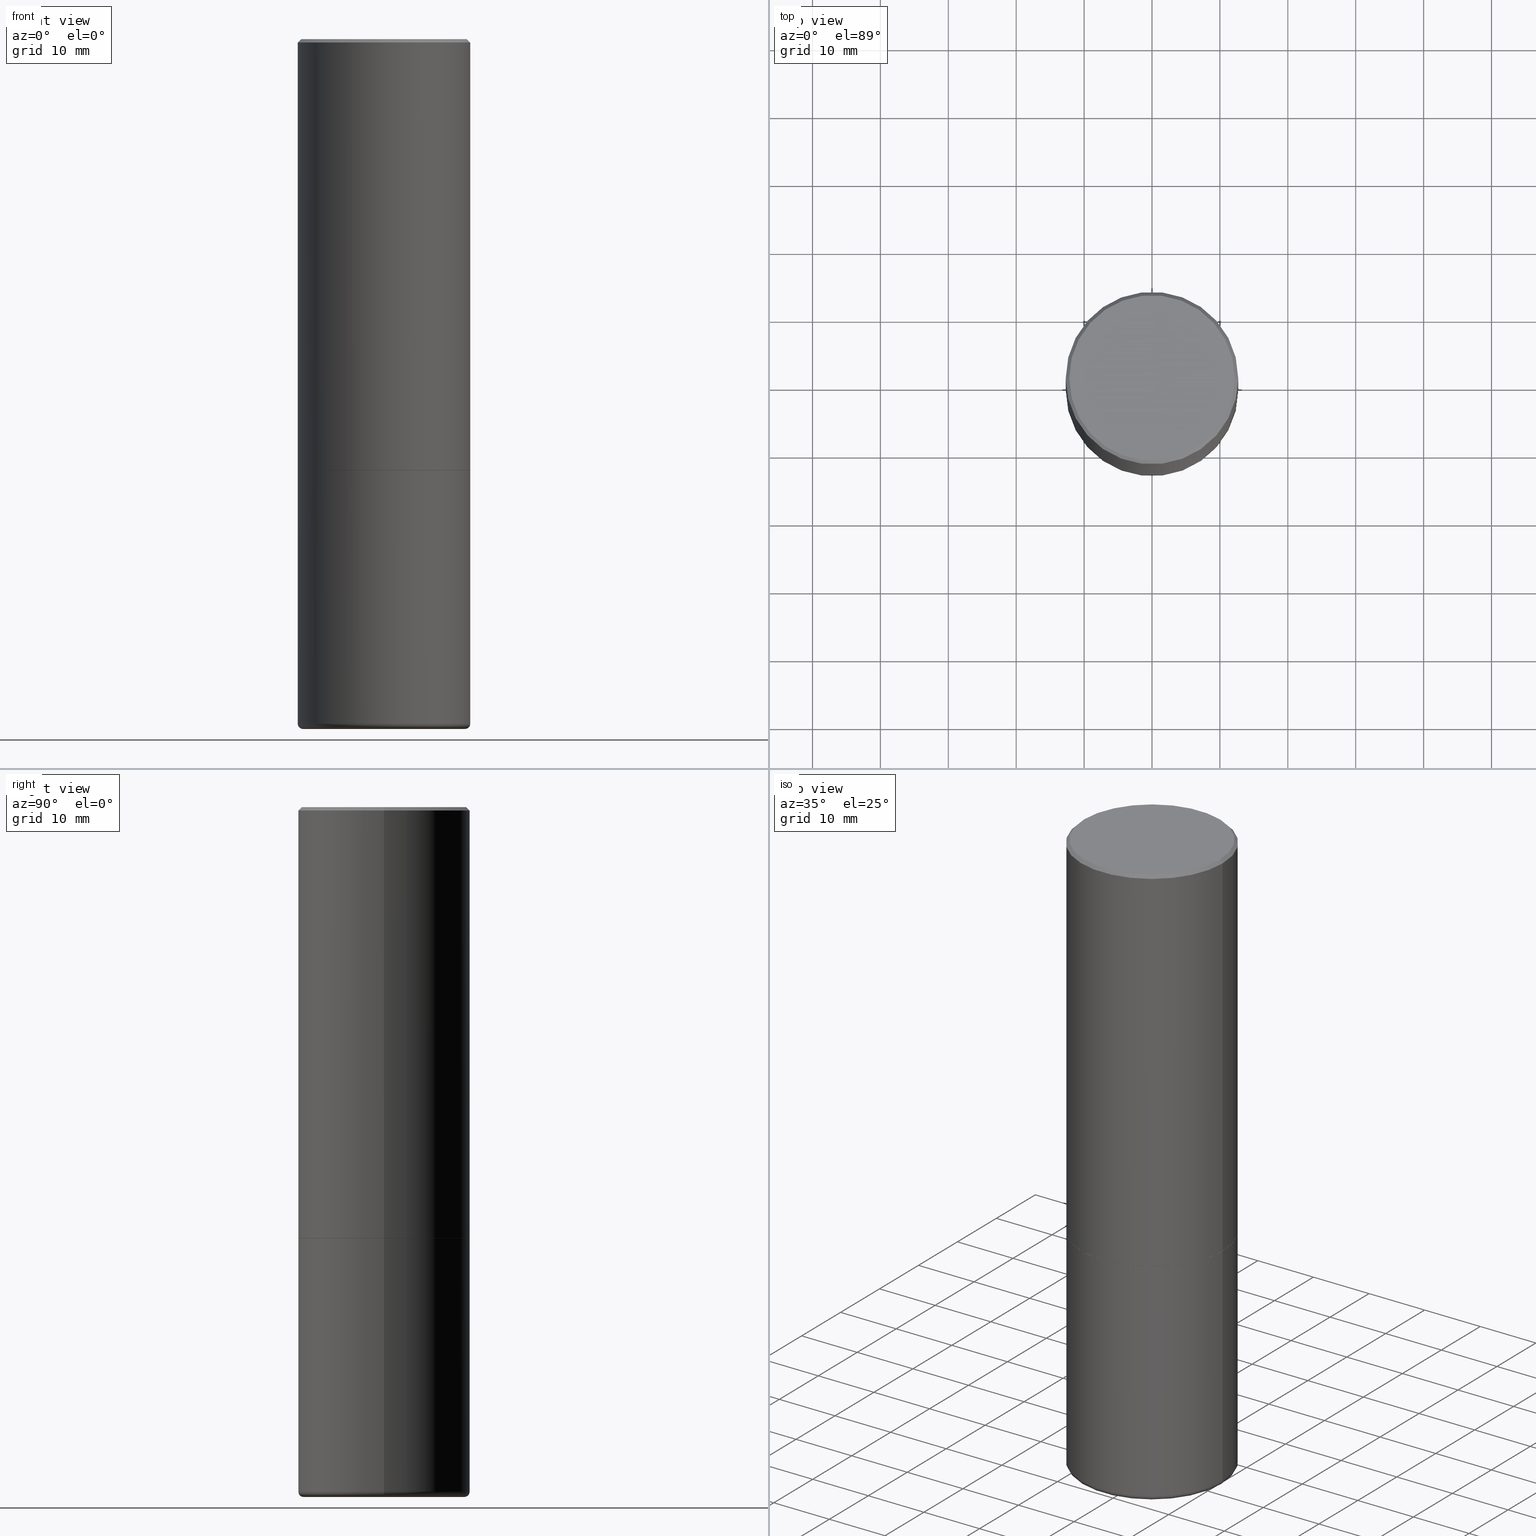
[diagram: canonical four-view strip — front | top / right | iso, engineering-drawing reading convention]
A machine part, canonical four-view strip (front | top / right | iso — engineering-drawing reading convention). The complete STEP part file that produces these views, byte-faithful:
ISO-10303-21;
HEADER;
FILE_DESCRIPTION (( 'STEP AP203' ),
    '1' );
FILE_NAME ('37138.STEP',
    '2024-03-01T20:50:48',
    ( '' ),
    ( '' ),
    'SwSTEP 2.0',
    'SolidWorks 2023',
    '' );
FILE_SCHEMA (( 'CONFIG_CONTROL_DESIGN' ));
ENDSEC;

DATA;
#1 = FACE_OUTER_BOUND ( 'NONE', #52, .T. ) ;
#2 = EDGE_CURVE ( 'NONE', #367, #404, #260, .T. ) ;
#3 = VERTEX_POINT ( 'NONE', #388 ) ;
#4 = DIRECTION ( 'NONE',  ( 1.000000000000000000, -6.982962677686266711E-15, 4.876176775795935793E-29 ) ) ;
#5 = ORIENTED_EDGE ( 'NONE', *, *, #308, .F. ) ;
#6 = CIRCLE ( 'NONE', #170, 0.5000000000000000000 ) ;
#7 = DIRECTION ( 'NONE',  ( 1.000000000000000000, -6.982962677686266711E-15, 0.000000000000000000 ) ) ;
#8 = AXIS2_PLACEMENT_3D ( 'NONE', #361, #225, #389 ) ;
#9 = EDGE_LOOP ( 'NONE', ( #262, #374, #134, #17 ) ) ;
#10 = ADVANCED_BREP_SHAPE_REPRESENTATION ( '37138', ( #21, #306, #273 ), #179 ) ;
#11 = FACE_OUTER_BOUND ( 'NONE', #314, .T. ) ;
#12 = CARTESIAN_POINT ( 'NONE',  ( 4.890937612370299433E-31, -6.982962677686328587E-17, -0.02000000000000010797 ) ) ;
#13 = SECURITY_CLASSIFICATION ( '', '', #221 ) ;
#14 = AXIS2_PLACEMENT_3D ( 'NONE', #257, #294, #355 ) ;
#15 = PRODUCT_DEFINITION ( 'UNKNOWN', '', #204, #48 ) ;
#16 = CALENDAR_DATE ( 2024, 1, 3 ) ;
#17 = ORIENTED_EDGE ( 'NONE', *, *, #122, .F. ) ;
#18 = EDGE_CURVE ( 'NONE', #175, #34, #206, .T. ) ;
#19 = APPLICATION_CONTEXT ( 'configuration controlled 3d designs of mechanical parts and assemblies' ) ;
#20 = ORIENTED_EDGE ( 'NONE', *, *, #304, .T. ) ;
#21 = MANIFOLD_SOLID_BREP ( 'Body-Move/Copy2[1]', #342 ) ;
#22 = DIRECTION ( 'NONE',  ( 1.000000000000000000, -6.982962677686265922E-15, 4.876176775795935793E-29 ) ) ;
#23 = ORIENTED_EDGE ( 'NONE', *, *, #73, .F. ) ;
#24 = TOROIDAL_SURFACE ( 'NONE', #91, 0.4700000000000000289, 0.02999999999999995379 ) ;
#25 =( LENGTH_UNIT ( ) NAMED_UNIT ( * ) SI_UNIT ( $, .METRE. ) );
#26 = EDGE_LOOP ( 'NONE', ( #344, #46, #5, #118 ) ) ;
#27 = LINE ( 'NONE', #127, #76 ) ;
#28 = LINE ( 'NONE', #289, #84 ) ;
#29 = VECTOR ( 'NONE', #65, 39.37007874015748143 ) ;
#30 = LINE ( 'NONE', #218, #238 ) ;
#31 = ADVANCED_FACE ( 'NONE', ( #158 ), #286, .T. ) ;
#32 = DATE_AND_TIME ( #97, #121 ) ;
#33 = CARTESIAN_POINT ( 'NONE',  ( 0.5000000000000000000, -1.735266225405042074E-14, -3.970000000000000195 ) ) ;
#34 = VERTEX_POINT ( 'NONE', #123 ) ;
#35 = DIRECTION ( 'NONE',  ( -2.445468806185136597E-29, 3.491481338843145583E-15, 1.000000000000000000 ) ) ;
#36 = AXIS2_PLACEMENT_3D ( 'NONE', #51, #145, #313 ) ;
#37 = CARTESIAN_POINT ( 'NONE',  ( -0.4799999999999998157, 3.386736898677839197E-15, 2.561107494060010972E-16 ) ) ;
#38 = EDGE_CURVE ( 'NONE', #396, #319, #27, .T. ) ;
#39 = FACE_OUTER_BOUND ( 'NONE', #9, .T. ) ;
#40 = DIRECTION ( 'NONE',  ( -2.445468806185136597E-29, 3.491481338843145583E-15, 1.000000000000000000 ) ) ;
#41 = ORIENTED_EDGE ( 'NONE', *, *, #274, .T. ) ;
#42 = CARTESIAN_POINT ( 'NONE',  ( 6.113672015462842613E-29, -8.728703347107864943E-15, -2.500000000000000000 ) ) ;
#43 = CARTESIAN_POINT ( 'NONE',  ( 0.000000000000000000, 0.000000000000000000, 0.000000000000000000 ) ) ;
#44 = APPROVAL_STATUS ( 'not_yet_approved' ) ;
#45 = CONICAL_SURFACE ( 'NONE', #266, 0.5000000000000001110, 0.7853981633974458365 ) ;
#46 = ORIENTED_EDGE ( 'NONE', *, *, #18, .T. ) ;
#47 = ADVANCED_FACE ( 'NONE', ( #409 ), #96, .F. ) ;
#48 = DESIGN_CONTEXT ( 'detailed design', #19, 'design' ) ;
#49 = AXIS2_PLACEMENT_3D ( 'NONE', #220, #326, #382 ) ;
#50 = ORIENTED_EDGE ( 'NONE', *, *, #256, .T. ) ;
#51 = CARTESIAN_POINT ( 'NONE',  ( 0.000000000000000000, 0.000000000000000000, 0.000000000000000000 ) ) ;
#52 = EDGE_LOOP ( 'NONE', ( #276, #349, #71, #375 ) ) ;
#53 = CARTESIAN_POINT ( 'NONE',  ( -0.5000000000000000000, -7.742228452357075234E-15, -2.500000000000000000 ) ) ;
#54 = ORIENTED_EDGE ( 'NONE', *, *, #336, .F. ) ;
#55 = TOROIDAL_SURFACE ( 'NONE', #103, 0.4700000000000000289, 0.02999999999999995379 ) ;
#56 = CIRCLE ( 'NONE', #14, 0.5000000000000000000 ) ;
#57 = PERSON_AND_ORGANIZATION_ROLE ( 'classification_officer' ) ;
#58 = ORIENTED_EDGE ( 'NONE', *, *, #223, .F. ) ;
#59 = PERSON_AND_ORGANIZATION ( #236, #301 ) ;
#60 = DIRECTION ( 'NONE',  ( -1.000000000000000000, 6.982962677686265922E-15, -4.876176775795935793E-29 ) ) ;
#61 = FACE_OUTER_BOUND ( 'NONE', #83, .T. ) ;
#62 = EDGE_CURVE ( 'NONE', #224, #341, #63, .T. ) ;
#63 = CIRCLE ( 'NONE', #119, 0.4799999999999998157 ) ;
#64 = CARTESIAN_POINT ( 'NONE',  ( 0.5000000000000000000, -1.222018468595099830E-14, -2.500000000000000000 ) ) ;
#65 = DIRECTION ( 'NONE',  ( 0.7071067811865457964, -7.319954787623249734E-15, -0.7071067811865492381 ) ) ;
#66 = DIRECTION ( 'NONE',  ( -1.000000000000000000, 6.982962677686265922E-15, 0.000000000000000000 ) ) ;
#67 = LOCAL_TIME ( 15, 50, 48.00000000000000000, #156 ) ;
#68 = CLOSED_SHELL ( 'NONE', ( #414, #176, #354, #31, #366, #195, #381, #241 ) ) ;
#69 = DIRECTION ( 'NONE',  ( 1.000000000000000000, -6.982962677686269077E-15, 0.000000000000000000 ) ) ;
#70 = PLANE ( 'NONE',  #110 ) ;
#71 = ORIENTED_EDGE ( 'NONE', *, *, #38, .T. ) ;
#72 = CARTESIAN_POINT ( 'NONE',  ( 0.4700000000000000289, -1.724791781388512737E-14, -4.000000000000000000 ) ) ;
#73 = EDGE_CURVE ( 'NONE', #34, #140, #417, .T. ) ;
#74 = VECTOR ( 'NONE', #373, 39.37007874015748143 ) ;
#75 = DIRECTION ( 'NONE',  ( -2.445468806185136597E-29, 3.491481338843145583E-15, 1.000000000000000000 ) ) ;
#76 = VECTOR ( 'NONE', #99, 39.37007874015748143 ) ;
#77 = APPLICATION_PROTOCOL_DEFINITION ( 'international standard', 'config_control_design', 1994, #360 ) ;
#78 = ADVANCED_FACE ( 'NONE', ( #411 ), #24, .T. ) ;
#79 = DIRECTION ( 'NONE',  ( 1.000000000000000000, 0.000000000000000000, 0.000000000000000000 ) ) ;
#80 = ORIENTED_EDGE ( 'NONE', *, *, #2, .F. ) ;
#81 = LOCAL_TIME ( 15, 50, 48.00000000000000000, #124 ) ;
#82 = CYLINDRICAL_SURFACE ( 'NONE', #36, 0.5000000000000001110 ) ;
#83 = EDGE_LOOP ( 'NONE', ( #142, #379, #54, #107 ) ) ;
#84 = VECTOR ( 'NONE', #253, 39.37007874015748143 ) ;
#85 = PERSON_AND_ORGANIZATION_ROLE ( 'design_owner' ) ;
#86 = ORIENTED_EDGE ( 'NONE', *, *, #163, .T. ) ;
#87 = FACE_OUTER_BOUND ( 'NONE', #247, .T. ) ;
#88 = EDGE_LOOP ( 'NONE', ( #210, #117, #114, #41 ) ) ;
#89 = VERTEX_POINT ( 'NONE', #64 ) ;
#90 = APPROVAL_PERSON_ORGANIZATION ( #293, #254, #284 ) ;
#91 = AXIS2_PLACEMENT_3D ( 'NONE', #120, #35, #149 ) ;
#92 = DIRECTION ( 'NONE',  ( -2.445468806185136877E-29, 3.491481338843145188E-15, 1.000000000000000000 ) ) ;
#93 = PRODUCT_DEFINITION_SHAPE ( 'NONE', 'NONE',  #15 ) ;
#94 = CALENDAR_DATE ( 2024, 1, 3 ) ;
#95 = EDGE_CURVE ( 'NONE', #140, #89, #285, .T. ) ;
#96 = PLANE ( 'NONE',  #245 ) ;
#97 = CALENDAR_DATE ( 2024, 1, 3 ) ;
#98 = DIRECTION ( 'NONE',  ( -2.445468806185136597E-29, 3.491481338843145583E-15, 1.000000000000000000 ) ) ;
#99 = DIRECTION ( 'NONE',  ( -2.445468806185136877E-29, 3.491481338843145188E-15, 1.000000000000000000 ) ) ;
#100 = CC_DESIGN_DATE_AND_TIME_ASSIGNMENT ( #126, #217, ( #15 ) ) ;
#101 = CARTESIAN_POINT ( 'NONE',  ( 6.113672015462842613E-29, -8.728703347107864943E-15, -2.500000000000000000 ) ) ;
#102 = CARTESIAN_POINT ( 'NONE',  ( -0.5000000000000001110, 3.421651712066270452E-15, -0.02000000000000010797 ) ) ;
#103 = AXIS2_PLACEMENT_3D ( 'NONE', #239, #40, #371 ) ;
#104 = FACE_OUTER_BOUND ( 'NONE', #197, .T. ) ;
#105 = DIRECTION ( 'NONE',  ( 1.000000000000000000, -6.982962677686269866E-15, 0.000000000000000000 ) ) ;
#106 = EDGE_CURVE ( 'NONE', #341, #319, #359, .T. ) ;
#107 = ORIENTED_EDGE ( 'NONE', *, *, #38, .F. ) ;
#108 = CARTESIAN_POINT ( 'NONE',  ( 3.351822085289406364E-15, 0.4799999999999998157, -1.547855667941696890E-15 ) ) ;
#109 = APPROVAL_PERSON_ORGANIZATION ( #209, #202, #171 ) ;
#110 = AXIS2_PLACEMENT_3D ( 'NONE', #108, #160, #233 ) ;
#111 = EDGE_CURVE ( 'NONE', #341, #224, #203, .T. ) ;
#112 = PERSON_AND_ORGANIZATION ( #236, #301 ) ;
#113 = EDGE_LOOP ( 'NONE', ( #58, #407, #86, #234 ) ) ;
#114 = ORIENTED_EDGE ( 'NONE', *, *, #122, .T. ) ;
#115 = UNCERTAINTY_MEASURE_WITH_UNIT (LENGTH_MEASURE( 1.000000000000000082E-05 ), #168, 'distance_accuracy_value', 'NONE');
#116 = FACE_OUTER_BOUND ( 'NONE', #207, .T. ) ;
#117 = ORIENTED_EDGE ( 'NONE', *, *, #62, .F. ) ;
#118 = ORIENTED_EDGE ( 'NONE', *, *, #256, .F. ) ;
#119 = AXIS2_PLACEMENT_3D ( 'NONE', #259, #98, #358 ) ;
#120 = CARTESIAN_POINT ( 'NONE',  ( 9.708511160554992872E-29, -1.386118091520728738E-14, -3.970000000000000195 ) ) ;
#121 = LOCAL_TIME ( 15, 50, 48.00000000000000000, #288 ) ;
#122 = EDGE_CURVE ( 'NONE', #224, #269, #30, .T. ) ;
#123 = CARTESIAN_POINT ( 'NONE',  ( -0.5000000000000000000, -1.030846723640678645E-14, -3.970000000000000195 ) ) ;
#124 = COORDINATED_UNIVERSAL_TIME_OFFSET ( 5, 0, .BEHIND. ) ;
#125 = PLANE ( 'NONE',  #193 ) ;
#126 = DATE_AND_TIME ( #94, #279 ) ;
#127 = CARTESIAN_POINT ( 'NONE',  ( 0.5000000000000001110, -3.491481338843134539E-15, 2.438088387897968457E-29 ) ) ;
#128 = CIRCLE ( 'NONE', #213, 0.5000000000000001110 ) ;
#129 = CARTESIAN_POINT ( 'NONE',  ( 4.890937612370299433E-31, -6.982962677686328587E-17, -0.02000000000000010797 ) ) ;
#130 = CC_DESIGN_PERSON_AND_ORGANIZATION_ASSIGNMENT ( #148, #219, ( #204 ) ) ;
#131 = DIRECTION ( 'NONE',  ( 1.000000000000000000, -6.982962677686279332E-15, 0.000000000000000000 ) ) ;
#132 = ADVANCED_FACE ( 'NONE', ( #356 ), #125, .T. ) ;
#133 = DIRECTION ( 'NONE',  ( 1.000000000000000000, -6.982962677686266711E-15, 0.000000000000000000 ) ) ;
#134 = ORIENTED_EDGE ( 'NONE', *, *, #336, .T. ) ;
#135 = CARTESIAN_POINT ( 'NONE',  ( 0.4700000000000000289, -1.714317337371983400E-14, -3.970000000000000195 ) ) ;
#136 = DIRECTION ( 'NONE',  ( -2.445468806185136597E-29, 3.491481338843145583E-15, 1.000000000000000000 ) ) ;
#137 = CC_DESIGN_APPROVAL ( #254, ( #204 ) ) ;
#138 = DIRECTION ( 'NONE',  ( -2.445468806185136877E-29, 3.491481338843145188E-15, 1.000000000000000000 ) ) ;
#139 = AXIS2_PLACEMENT_3D ( 'NONE', #264, #75, #270 ) ;
#140 = VERTEX_POINT ( 'NONE', #33 ) ;
#141 = DIRECTION ( 'NONE',  ( 1.000000000000000000, -6.982962677686269866E-15, 0.000000000000000000 ) ) ;
#142 = ORIENTED_EDGE ( 'NONE', *, *, #324, .T. ) ;
#143 = AXIS2_PLACEMENT_3D ( 'NONE', #277, #405, #22 ) ;
#144 = EDGE_CURVE ( 'NONE', #89, #378, #56, .T. ) ;
#145 = DIRECTION ( 'NONE',  ( -2.445468806185136597E-29, 3.491481338843145583E-15, 1.000000000000000000 ) ) ;
#146 = ORIENTED_EDGE ( 'NONE', *, *, #73, .T. ) ;
#147 = EDGE_LOOP ( 'NONE', ( #312, #173, #50, #23 ) ) ;
#148 = PERSON_AND_ORGANIZATION ( #236, #301 ) ;
#149 = DIRECTION ( 'NONE',  ( 1.000000000000000000, -6.982962677686266711E-15, 4.883557194083113462E-29 ) ) ;
#150 = EDGE_CURVE ( 'NONE', #404, #367, #310, .T. ) ;
#151 = APPROVAL ( #384, 'UNSPECIFIED' ) ;
#152 = CARTESIAN_POINT ( 'NONE',  ( 6.113672015462842613E-29, -8.728703347107864943E-15, -2.500000000000000000 ) ) ;
#153 = CC_DESIGN_SECURITY_CLASSIFICATION ( #13, ( #204 ) ) ;
#154 = APPROVAL_ROLE ( '' ) ;
#155 = DIRECTION ( 'NONE',  ( -2.445468806185136597E-29, 3.491481338843145583E-15, 1.000000000000000000 ) ) ;
#156 = COORDINATED_UNIVERSAL_TIME_OFFSET ( 5, 0, .BEHIND. ) ;
#157 = DIRECTION ( 'NONE',  ( 2.438088387897960049E-29, -3.491481338843145188E-15, -1.000000000000000000 ) ) ;
#158 = FACE_OUTER_BOUND ( 'NONE', #88, .T. ) ;
#159 = AXIS2_PLACEMENT_3D ( 'NONE', #231, #365, #4 ) ;
#160 = DIRECTION ( 'NONE',  ( 2.438088387897960049E-29, -3.491481338843145188E-15, -1.000000000000000000 ) ) ;
#161 = CC_DESIGN_PERSON_AND_ORGANIZATION_ASSIGNMENT ( #59, #329, ( #15 ) ) ;
#162 = DIRECTION ( 'NONE',  ( -2.445468806185136597E-29, 3.491481338843145583E-15, 1.000000000000000000 ) ) ;
#163 = EDGE_CURVE ( 'NONE', #367, #396, #28, .T. ) ;
#164 = DIRECTION ( 'NONE',  ( -1.000000000000000000, 6.982962677686265922E-15, 0.000000000000000000 ) ) ;
#165 = ORIENTED_EDGE ( 'NONE', *, *, #392, .T. ) ;
#166 = CARTESIAN_POINT ( 'NONE',  ( -0.4989999999999999991, -5.183095095664965021E-15, -2.500000000000000000 ) ) ;
#167 = DIRECTION ( 'NONE',  ( 1.000000000000000000, -6.982962677686266711E-15, 0.000000000000000000 ) ) ;
#168 =( CONVERSION_BASED_UNIT ( 'INCH', #275 ) LENGTH_UNIT ( ) NAMED_UNIT ( #362 ) );
#169 = AXIS2_PLACEMENT_3D ( 'NONE', #152, #155, #186 ) ;
#170 = AXIS2_PLACEMENT_3D ( 'NONE', #335, #395, #167 ) ;
#171 = APPROVAL_ROLE ( '' ) ;
#172 = AXIS2_PLACEMENT_3D ( 'NONE', #385, #418, #66 ) ;
#173 = ORIENTED_EDGE ( 'NONE', *, *, #290, .T. ) ;
#174 = CARTESIAN_POINT ( 'NONE',  ( -0.5000000000000001110, 3.552713678800501718E-15, -2.459467545127453732E-29 ) ) ;
#175 = VERTEX_POINT ( 'NONE', #383 ) ;
#176 = ADVANCED_FACE ( 'NONE', ( #61 ), #189, .T. ) ;
#177 = CARTESIAN_POINT ( 'NONE',  ( -0.5000000000000000000, 3.552713678800500929E-15, -2.459467545127452891E-29 ) ) ;
#178 = ORIENTED_EDGE ( 'NONE', *, *, #144, .F. ) ;
#179 =( GEOMETRIC_REPRESENTATION_CONTEXT ( 3 ) GLOBAL_UNCERTAINTY_ASSIGNED_CONTEXT ( ( #115 ) ) GLOBAL_UNIT_ASSIGNED_CONTEXT ( ( #168, #282, #248 ) ) REPRESENTATION_CONTEXT ( 'NONE', 'WORKASPACE' ) );
#180 = LINE ( 'NONE', #177, #74 ) ;
#181 = ORIENTED_EDGE ( 'NONE', *, *, #2, .T. ) ;
#182 = DATE_TIME_ROLE ( 'classification_date' ) ;
#183 = ADVANCED_FACE ( 'NONE', ( #334 ), #370, .T. ) ;
#184 = ORIENTED_EDGE ( 'NONE', *, *, #111, .T. ) ;
#185 = PERSON_AND_ORGANIZATION ( #236, #301 ) ;
#186 = DIRECTION ( 'NONE',  ( 1.000000000000000000, -6.982962677686266711E-15, 0.000000000000000000 ) ) ;
#187 = APPROVAL_STATUS ( 'not_yet_approved' ) ;
#188 = VECTOR ( 'NONE', #138, 39.37007874015748143 ) ;
#189 = CYLINDRICAL_SURFACE ( 'NONE', #228, 0.5000000000000001110 ) ;
#190 = DIRECTION ( 'NONE',  ( -2.445468806185136597E-29, 3.491481338843145583E-15, 1.000000000000000000 ) ) ;
#191 = DIRECTION ( 'NONE',  ( 1.000000000000000000, -6.982962677686266711E-15, 4.878011538933552085E-29 ) ) ;
#192 = DIRECTION ( 'NONE',  ( 2.445468806185136597E-29, -3.491481338843145583E-15, -1.000000000000000000 ) ) ;
#193 = AXIS2_PLACEMENT_3D ( 'NONE', #328, #157, #60 ) ;
#194 = DIRECTION ( 'NONE',  ( -6.982962677686266711E-15, -1.000000000000000000, 3.491481338843145583E-15 ) ) ;
#195 = ADVANCED_FACE ( 'NONE', ( #300 ), #318, .T. ) ;
#196 = DIRECTION ( 'NONE',  ( -2.445468806185136597E-29, 3.491481338843145583E-15, 1.000000000000000000 ) ) ;
#197 = EDGE_LOOP ( 'NONE', ( #283, #146, #346, #406 ) ) ;
#198 = DIRECTION ( 'NONE',  ( 1.000000000000000000, -6.982962677686266711E-15, 4.876176775795935793E-29 ) ) ;
#199 = DIRECTION ( 'NONE',  ( -2.445468806185136597E-29, 3.491481338843145583E-15, 1.000000000000000000 ) ) ;
#200 = MECHANICAL_CONTEXT ( 'NONE', #360, 'mechanical' ) ;
#201 = ORIENTED_EDGE ( 'NONE', *, *, #290, .F. ) ;
#202 = APPROVAL ( #44, 'UNSPECIFIED' ) ;
#203 = CIRCLE ( 'NONE', #267, 0.4799999999999998157 ) ;
#204 = PRODUCT_DEFINITION_FORMATION_WITH_SPECIFIED_SOURCE ( 'ANY', '', #230, .NOT_KNOWN. ) ;
#205 = LINE ( 'NONE', #174, #188 ) ;
#206 = CIRCLE ( 'NONE', #49, 0.02999999999999995379 ) ;
#207 = EDGE_LOOP ( 'NONE', ( #181, #278, #401, #369 ) ) ;
#208 = ADVANCED_FACE ( 'NONE', ( #104 ), #337, .T. ) ;
#209 = PERSON_AND_ORGANIZATION ( #236, #301 ) ;
#210 = ORIENTED_EDGE ( 'NONE', *, *, #106, .F. ) ;
#211 = CARTESIAN_POINT ( 'NONE',  ( 6.113672015462842613E-29, -8.728703347107864943E-15, -2.500000000000000000 ) ) ;
#212 = ORIENTED_EDGE ( 'NONE', *, *, #271, .F. ) ;
#213 = AXIS2_PLACEMENT_3D ( 'NONE', #12, #136, #368 ) ;
#214 = CALENDAR_DATE ( 2024, 1, 3 ) ;
#215 = ORIENTED_EDGE ( 'NONE', *, *, #150, .F. ) ;
#216 = AXIS2_PLACEMENT_3D ( 'NONE', #135, #194, #131 ) ;
#217 = DATE_TIME_ROLE ( 'creation_date' ) ;
#218 = CARTESIAN_POINT ( 'NONE',  ( -0.5000000000000001110, 3.421651712066270452E-15, -0.02000000000000010797 ) ) ;
#219 = PERSON_AND_ORGANIZATION_ROLE ( 'design_supplier' ) ;
#220 = CARTESIAN_POINT ( 'NONE',  ( -0.4700000000000000289, -1.052163005713481670E-14, -3.970000000000000195 ) ) ;
#221 = SECURITY_CLASSIFICATION_LEVEL ( 'unclassified' ) ;
#222 = CARTESIAN_POINT ( 'NONE',  ( 0.5000000000000001110, -3.500078625662629868E-15, -0.02000000000000010797 ) ) ;
#223 = EDGE_CURVE ( 'NONE', #404, #3, #397, .T. ) ;
#224 = VERTEX_POINT ( 'NONE', #37 ) ;
#225 = DIRECTION ( 'NONE',  ( -2.445468806185136597E-29, 3.491481338843145583E-15, 1.000000000000000000 ) ) ;
#226 = CC_DESIGN_PERSON_AND_ORGANIZATION_ASSIGNMENT ( #112, #85, ( #230 ) ) ;
#227 = CARTESIAN_POINT ( 'NONE',  ( 6.111226546656657010E-29, -8.725211865769021935E-15, -2.499000000000000110 ) ) ;
#228 = AXIS2_PLACEMENT_3D ( 'NONE', #292, #162, #390 ) ;
#229 = CIRCLE ( 'NONE', #399, 0.5000000000000002220 ) ;
#230 = PRODUCT ( '37138', '37138', '', ( #200 ) ) ;
#231 = CARTESIAN_POINT ( 'NONE',  ( 0.000000000000000000, 0.000000000000000000, 0.000000000000000000 ) ) ;
#232 = ORIENTED_EDGE ( 'NONE', *, *, #62, .T. ) ;
#233 = DIRECTION ( 'NONE',  ( -1.000000000000000000, 6.982962677686265922E-15, -4.876176775795935793E-29 ) ) ;
#234 = ORIENTED_EDGE ( 'NONE', *, *, #402, .F. ) ;
#235 = CARTESIAN_POINT ( 'NONE',  ( 4.890937612370299433E-31, -6.982962677686328587E-17, -0.02000000000000010797 ) ) ;
#236 = PERSON ( 'UNSPECIFIED', 'UNSPECIFIED', 'UNSPECIFIED', ('UNSPECIFIED'), ('UNSPECIFIED'), ('UNSPECIFIED') ) ;
#237 = CIRCLE ( 'NONE', #287, 0.4700000000000000289 ) ;
#238 = VECTOR ( 'NONE', #330, 39.37007874015748143 ) ;
#239 = CARTESIAN_POINT ( 'NONE',  ( 9.708511160554992872E-29, -1.386118091520728738E-14, -3.970000000000000195 ) ) ;
#240 = DIRECTION ( 'NONE',  ( 1.000000000000000000, -6.982962677686266711E-15, 0.000000000000000000 ) ) ;
#241 = ADVANCED_FACE ( 'NONE', ( #11 ), #70, .F. ) ;
#242 = DATE_AND_TIME ( #16, #265 ) ;
#243 = EDGE_LOOP ( 'NONE', ( #212, #201 ) ) ;
#244 = CC_DESIGN_APPROVAL ( #202, ( #15 ) ) ;
#245 = AXIS2_PLACEMENT_3D ( 'NONE', #101, #261, #323 ) ;
#246 = CARTESIAN_POINT ( 'NONE',  ( 0.4989999999999999991, -1.221320172327331228E-14, -2.500000000000000000 ) ) ;
#247 = EDGE_LOOP ( 'NONE', ( #80, #215 ) ) ;
#248 =( NAMED_UNIT ( * ) SI_UNIT ( $, .STERADIAN. ) SOLID_ANGLE_UNIT ( ) );
#249 = ORIENTED_EDGE ( 'NONE', *, *, #308, .T. ) ;
#250 = CONICAL_SURFACE ( 'NONE', #317, 0.4989999999999999991, 0.7853981633976873100 ) ;
#251 = CARTESIAN_POINT ( 'NONE',  ( 0.5000000000000000000, -3.491481338843133355E-15, 2.438088387897967896E-29 ) ) ;
#252 = CIRCLE ( 'NONE', #258, 0.5000000000000001110 ) ;
#253 = DIRECTION ( 'NONE',  ( 0.7071067811867165487, -2.468850131084027659E-15, 0.7071067811863784858 ) ) ;
#254 = APPROVAL ( #187, 'UNSPECIFIED' ) ;
#255 = CALENDAR_DATE ( 2024, 1, 3 ) ;
#256 = EDGE_CURVE ( 'NONE', #316, #140, #351, .T. ) ;
#257 = CARTESIAN_POINT ( 'NONE',  ( 6.113672015462842613E-29, -8.728703347107864943E-15, -2.500000000000000000 ) ) ;
#258 = AXIS2_PLACEMENT_3D ( 'NONE', #235, #199, #364 ) ;
#259 = CARTESIAN_POINT ( 'NONE',  ( -6.263108486011318684E-45, 8.942059022282684186E-31, 2.561107494060246644E-16 ) ) ;
#260 = CIRCLE ( 'NONE', #8, 0.4989999999999999991 ) ;
#261 = DIRECTION ( 'NONE',  ( 2.438088387897960049E-29, -3.491481338843145188E-15, -1.000000000000000000 ) ) ;
#262 = ORIENTED_EDGE ( 'NONE', *, *, #111, .F. ) ;
#263 = CARTESIAN_POINT ( 'NONE',  ( 6.113672015462842613E-29, -8.728703347107864943E-15, -2.500000000000000000 ) ) ;
#264 = CARTESIAN_POINT ( 'NONE',  ( 9.781875224740546387E-29, -1.396592535537258233E-14, -4.000000000000000000 ) ) ;
#265 = LOCAL_TIME ( 15, 50, 48.00000000000000000, #345 ) ;
#266 = AXIS2_PLACEMENT_3D ( 'NONE', #129, #192, #164 ) ;
#267 = AXIS2_PLACEMENT_3D ( 'NONE', #415, #190, #191 ) ;
#268 = DIRECTION ( 'NONE',  ( -2.445468806185136597E-29, 3.491481338843145583E-15, 1.000000000000000000 ) ) ;
#269 = VERTEX_POINT ( 'NONE', #102 ) ;
#270 = DIRECTION ( 'NONE',  ( 1.000000000000000000, -6.982962677686266711E-15, 0.000000000000000000 ) ) ;
#271 = EDGE_CURVE ( 'NONE', #316, #175, #333, .T. ) ;
#272 = FACE_OUTER_BOUND ( 'NONE', #26, .T. ) ;
#273 = AXIS2_PLACEMENT_3D ( 'NONE', #43, #372, #79 ) ;
#274 = EDGE_CURVE ( 'NONE', #269, #319, #252, .T. ) ;
#275 = LENGTH_MEASURE_WITH_UNIT ( LENGTH_MEASURE( 0.02539999999999999897 ), #25 );
#276 = ORIENTED_EDGE ( 'NONE', *, *, #376, .F. ) ;
#277 = CARTESIAN_POINT ( 'NONE',  ( 6.113672015462842613E-29, -8.728703347107864943E-15, -2.500000000000000000 ) ) ;
#278 = ORIENTED_EDGE ( 'NONE', *, *, #223, .T. ) ;
#279 = LOCAL_TIME ( 15, 50, 48.00000000000000000, #291 ) ;
#280 = CARTESIAN_POINT ( 'NONE',  ( 0.5000000000000002220, -1.221669320461215845E-14, -2.499000000000000110 ) ) ;
#281 = EDGE_LOOP ( 'NONE', ( #249, #165, #178, #394 ) ) ;
#282 =( NAMED_UNIT ( * ) PLANE_ANGLE_UNIT ( ) SI_UNIT ( $, .RADIAN. ) );
#283 = ORIENTED_EDGE ( 'NONE', *, *, #392, .F. ) ;
#284 = APPROVAL_ROLE ( '' ) ;
#285 = LINE ( 'NONE', #251, #303 ) ;
#286 = CONICAL_SURFACE ( 'NONE', #172, 0.5000000000000001110, 0.7853981633974458365 ) ;
#287 = AXIS2_PLACEMENT_3D ( 'NONE', #338, #196, #133 ) ;
#288 = COORDINATED_UNIVERSAL_TIME_OFFSET ( 5, 0, .BEHIND. ) ;
#289 = CARTESIAN_POINT ( 'NONE',  ( 0.4989999999999999991, -1.221320172327331228E-14, -2.500000000000000000 ) ) ;
#290 = EDGE_CURVE ( 'NONE', #175, #316, #237, .T. ) ;
#291 = COORDINATED_UNIVERSAL_TIME_OFFSET ( 5, 0, .BEHIND. ) ;
#292 = CARTESIAN_POINT ( 'NONE',  ( 0.000000000000000000, 0.000000000000000000, 0.000000000000000000 ) ) ;
#293 = PERSON_AND_ORGANIZATION ( #236, #301 ) ;
#294 = DIRECTION ( 'NONE',  ( -2.445468806185136597E-29, 3.491481338843145583E-15, 1.000000000000000000 ) ) ;
#295 = DIRECTION ( 'NONE',  ( 1.000000000000000000, -6.982962677686266711E-15, 0.000000000000000000 ) ) ;
#296 = VECTOR ( 'NONE', #398, 39.37007874015748143 ) ;
#297 = CC_DESIGN_DATE_AND_TIME_ASSIGNMENT ( #357, #182, ( #13 ) ) ;
#298 = CARTESIAN_POINT ( 'NONE',  ( 0.4799999999999998157, -3.396558832296481310E-15, 2.561107494060482809E-16 ) ) ;
#299 = DIRECTION ( 'NONE',  ( -2.445468806185136597E-29, 3.491481338843145583E-15, 1.000000000000000000 ) ) ;
#300 = FACE_OUTER_BOUND ( 'NONE', #113, .T. ) ;
#301 = ORGANIZATION ( 'UNSPECIFIED', 'UNSPECIFIED', '' ) ;
#302 = EDGE_LOOP ( 'NONE', ( #353, #20 ) ) ;
#303 = VECTOR ( 'NONE', #92, 39.37007874015748143 ) ;
#304 = EDGE_CURVE ( 'NONE', #378, #89, #331, .T. ) ;
#305 = CARTESIAN_POINT ( 'NONE',  ( 0.000000000000000000, 0.000000000000000000, 0.000000000000000000 ) ) ;
#306 = MANIFOLD_SOLID_BREP ( 'Body-Move/Copy2[2]', #68 ) ;
#307 = CARTESIAN_POINT ( 'NONE',  ( 0.5000000000000001110, -3.500078625662629868E-15, -0.02000000000000010797 ) ) ;
#308 = EDGE_CURVE ( 'NONE', #140, #34, #6, .T. ) ;
#309 = APPROVAL_PERSON_ORGANIZATION ( #412, #151, #154 ) ;
#310 = CIRCLE ( 'NONE', #169, 0.4989999999999999991 ) ;
#311 = CARTESIAN_POINT ( 'NONE',  ( -0.4989999999999999991, -5.177796641316741831E-15, -2.500000000000000000 ) ) ;
#312 = ORIENTED_EDGE ( 'NONE', *, *, #18, .F. ) ;
#313 = DIRECTION ( 'NONE',  ( 1.000000000000000000, -6.982962677686267499E-15, 4.876176775795935793E-29 ) ) ;
#314 = EDGE_LOOP ( 'NONE', ( #232, #184 ) ) ;
#315 = CARTESIAN_POINT ( 'NONE',  ( 6.111226546656657010E-29, -8.725211865769021935E-15, -2.499000000000000110 ) ) ;
#316 = VERTEX_POINT ( 'NONE', #72 ) ;
#317 = AXIS2_PLACEMENT_3D ( 'NONE', #211, #348, #240 ) ;
#318 = CONICAL_SURFACE ( 'NONE', #410, 0.4989999999999999991, 0.7853981633976873100 ) ;
#319 = VERTEX_POINT ( 'NONE', #307 ) ;
#320 = DIRECTION ( 'NONE',  ( -2.445468806185136597E-29, 3.491481338843145583E-15, 1.000000000000000000 ) ) ;
#321 = CC_DESIGN_PERSON_AND_ORGANIZATION_ASSIGNMENT ( #387, #57, ( #13 ) ) ;
#322 = APPROVAL_DATE_TIME ( #32, #151 ) ;
#323 = DIRECTION ( 'NONE',  ( -1.000000000000000000, 6.982962677686265922E-15, -4.876176775795935793E-29 ) ) ;
#324 = EDGE_CURVE ( 'NONE', #396, #3, #229, .T. ) ;
#325 = SHAPE_DEFINITION_REPRESENTATION ( #93, #10 ) ;
#326 = DIRECTION ( 'NONE',  ( 7.105427357601001859E-15, 1.000000000000000000, -3.491481338843145583E-15 ) ) ;
#327 = DATE_AND_TIME ( #214, #81 ) ;
#328 = CARTESIAN_POINT ( 'NONE',  ( 9.781875224740546387E-29, -1.396592535537258233E-14, -4.000000000000000000 ) ) ;
#329 = PERSON_AND_ORGANIZATION_ROLE ( 'creator' ) ;
#330 = DIRECTION ( 'NONE',  ( -0.7071067811865457964, 2.468850131082238917E-15, -0.7071067811865492381 ) ) ;
#331 = CIRCLE ( 'NONE', #380, 0.5000000000000000000 ) ;
#332 = DIRECTION ( 'NONE',  ( -2.445468806185136597E-29, 3.491481338843145583E-15, 1.000000000000000000 ) ) ;
#333 = CIRCLE ( 'NONE', #139, 0.4700000000000000289 ) ;
#334 = FACE_OUTER_BOUND ( 'NONE', #281, .T. ) ;
#335 = CARTESIAN_POINT ( 'NONE',  ( 9.708511160554992872E-29, -1.386118091520728738E-14, -3.970000000000000195 ) ) ;
#336 = EDGE_CURVE ( 'NONE', #319, #269, #128, .T. ) ;
#337 = CYLINDRICAL_SURFACE ( 'NONE', #159, 0.5000000000000000000 ) ;
#338 = CARTESIAN_POINT ( 'NONE',  ( 9.781875224740546387E-29, -1.396592535537258233E-14, -4.000000000000000000 ) ) ;
#339 = PRODUCT_RELATED_PRODUCT_CATEGORY ( 'detail', '', ( #230 ) ) ;
#340 = APPLICATION_PROTOCOL_DEFINITION ( 'international standard', 'config_control_design', 1994, #19 ) ;
#341 = VERTEX_POINT ( 'NONE', #298 ) ;
#342 = CLOSED_SHELL ( 'NONE', ( #183, #347, #47, #208, #78, #132 ) ) ;
#343 = APPROVAL_DATE_TIME ( #242, #202 ) ;
#344 = ORIENTED_EDGE ( 'NONE', *, *, #271, .T. ) ;
#345 = COORDINATED_UNIVERSAL_TIME_OFFSET ( 5, 0, .BEHIND. ) ;
#346 = ORIENTED_EDGE ( 'NONE', *, *, #95, .T. ) ;
#347 = ADVANCED_FACE ( 'NONE', ( #272 ), #55, .T. ) ;
#348 = DIRECTION ( 'NONE',  ( -2.445468806185136597E-29, 3.491481338843145583E-15, 1.000000000000000000 ) ) ;
#349 = ORIENTED_EDGE ( 'NONE', *, *, #402, .T. ) ;
#350 = AXIS2_PLACEMENT_3D ( 'NONE', #315, #377, #141 ) ;
#351 = CIRCLE ( 'NONE', #216, 0.02999999999999995379 ) ;
#352 = PERSON_AND_ORGANIZATION_ROLE ( 'creator' ) ;
#353 = ORIENTED_EDGE ( 'NONE', *, *, #144, .T. ) ;
#354 = ADVANCED_FACE ( 'NONE', ( #39 ), #45, .T. ) ;
#355 = DIRECTION ( 'NONE',  ( 1.000000000000000000, -6.982962677686269077E-15, 0.000000000000000000 ) ) ;
#356 = FACE_OUTER_BOUND ( 'NONE', #243, .T. ) ;
#357 = DATE_AND_TIME ( #255, #67 ) ;
#358 = DIRECTION ( 'NONE',  ( 1.000000000000000000, -6.982962677686266711E-15, 4.878011538933552085E-29 ) ) ;
#359 = LINE ( 'NONE', #222, #29 ) ;
#360 = APPLICATION_CONTEXT ( 'configuration controlled 3d designs of mechanical parts and assemblies' ) ;
#361 = CARTESIAN_POINT ( 'NONE',  ( 6.113672015462842613E-29, -8.728703347107864943E-15, -2.500000000000000000 ) ) ;
#362 = DIMENSIONAL_EXPONENTS ( 1.000000000000000000, 0.000000000000000000, 0.000000000000000000, 0.000000000000000000, 0.000000000000000000, 0.000000000000000000, 0.000000000000000000 ) ;
#363 = CC_DESIGN_APPROVAL ( #151, ( #13 ) ) ;
#364 = DIRECTION ( 'NONE',  ( 1.000000000000000000, -6.982962677686265922E-15, 0.000000000000000000 ) ) ;
#365 = DIRECTION ( 'NONE',  ( -2.445468806185136597E-29, 3.491481338843145583E-15, 1.000000000000000000 ) ) ;
#366 = ADVANCED_FACE ( 'NONE', ( #1 ), #82, .T. ) ;
#367 = VERTEX_POINT ( 'NONE', #246 ) ;
#368 = DIRECTION ( 'NONE',  ( 1.000000000000000000, -6.982962677686265922E-15, 0.000000000000000000 ) ) ;
#369 = ORIENTED_EDGE ( 'NONE', *, *, #163, .F. ) ;
#370 = CYLINDRICAL_SURFACE ( 'NONE', #400, 0.5000000000000000000 ) ;
#371 = DIRECTION ( 'NONE',  ( 1.000000000000000000, -6.982962677686266711E-15, 4.883557194083113462E-29 ) ) ;
#372 = DIRECTION ( 'NONE',  ( 0.000000000000000000, 0.000000000000000000, 1.000000000000000000 ) ) ;
#373 = DIRECTION ( 'NONE',  ( -2.445468806185136877E-29, 3.491481338843145188E-15, 1.000000000000000000 ) ) ;
#374 = ORIENTED_EDGE ( 'NONE', *, *, #106, .T. ) ;
#375 = ORIENTED_EDGE ( 'NONE', *, *, #274, .F. ) ;
#376 = EDGE_CURVE ( 'NONE', #3, #269, #205, .T. ) ;
#377 = DIRECTION ( 'NONE',  ( -2.445468806185136597E-29, 3.491481338843145583E-15, 1.000000000000000000 ) ) ;
#378 = VERTEX_POINT ( 'NONE', #53 ) ;
#379 = ORIENTED_EDGE ( 'NONE', *, *, #376, .T. ) ;
#380 = AXIS2_PLACEMENT_3D ( 'NONE', #42, #332, #69 ) ;
#381 = ADVANCED_FACE ( 'NONE', ( #87 ), #403, .F. ) ;
#382 = DIRECTION ( 'NONE',  ( -1.000000000000000000, 7.105427357601001859E-15, 0.000000000000000000 ) ) ;
#383 = CARTESIAN_POINT ( 'NONE',  ( -0.4700000000000000289, -1.046742086685344905E-14, -4.000000000000000000 ) ) ;
#384 = APPROVAL_STATUS ( 'not_yet_approved' ) ;
#385 = CARTESIAN_POINT ( 'NONE',  ( 4.890937612370299433E-31, -6.982962677686328587E-17, -0.02000000000000010797 ) ) ;
#386 = CIRCLE ( 'NONE', #350, 0.5000000000000002220 ) ;
#387 = PERSON_AND_ORGANIZATION ( #236, #301 ) ;
#388 = CARTESIAN_POINT ( 'NONE',  ( -0.5000000000000002220, -8.448070674724393209E-16, -2.499000000000000110 ) ) ;
#389 = DIRECTION ( 'NONE',  ( 1.000000000000000000, -6.982962677686266711E-15, 0.000000000000000000 ) ) ;
#390 = DIRECTION ( 'NONE',  ( 1.000000000000000000, -6.982962677686267499E-15, 4.876176775795935793E-29 ) ) ;
#391 = AXIS2_PLACEMENT_3D ( 'NONE', #413, #320, #295 ) ;
#392 = EDGE_CURVE ( 'NONE', #34, #378, #180, .T. ) ;
#393 = DIRECTION ( 'NONE',  ( -2.445468806185136597E-29, 3.491481338843145583E-15, 1.000000000000000000 ) ) ;
#394 = ORIENTED_EDGE ( 'NONE', *, *, #95, .F. ) ;
#395 = DIRECTION ( 'NONE',  ( -2.445468806185136597E-29, 3.491481338843145583E-15, 1.000000000000000000 ) ) ;
#396 = VERTEX_POINT ( 'NONE', #280 ) ;
#397 = LINE ( 'NONE', #166, #296 ) ;
#398 = DIRECTION ( 'NONE',  ( -0.7071067811867165487, 7.493145998870964739E-15, 0.7071067811863784858 ) ) ;
#399 = AXIS2_PLACEMENT_3D ( 'NONE', #227, #268, #105 ) ;
#400 = AXIS2_PLACEMENT_3D ( 'NONE', #305, #299, #198 ) ;
#401 = ORIENTED_EDGE ( 'NONE', *, *, #324, .F. ) ;
#402 = EDGE_CURVE ( 'NONE', #3, #396, #386, .T. ) ;
#403 = PLANE ( 'NONE',  #143 ) ;
#404 = VERTEX_POINT ( 'NONE', #311 ) ;
#405 = DIRECTION ( 'NONE',  ( -2.438088387897960049E-29, 3.491481338843145188E-15, 1.000000000000000000 ) ) ;
#406 = ORIENTED_EDGE ( 'NONE', *, *, #304, .F. ) ;
#407 = ORIENTED_EDGE ( 'NONE', *, *, #150, .T. ) ;
#408 = CC_DESIGN_PERSON_AND_ORGANIZATION_ASSIGNMENT ( #185, #352, ( #204 ) ) ;
#409 = FACE_OUTER_BOUND ( 'NONE', #302, .T. ) ;
#410 = AXIS2_PLACEMENT_3D ( 'NONE', #263, #393, #7 ) ;
#411 = FACE_OUTER_BOUND ( 'NONE', #147, .T. ) ;
#412 = PERSON_AND_ORGANIZATION ( #236, #301 ) ;
#413 = CARTESIAN_POINT ( 'NONE',  ( 9.708511160554992872E-29, -1.386118091520728738E-14, -3.970000000000000195 ) ) ;
#414 = ADVANCED_FACE ( 'NONE', ( #116 ), #250, .T. ) ;
#415 = CARTESIAN_POINT ( 'NONE',  ( -6.263108486011318684E-45, 8.942059022282684186E-31, 2.561107494060246644E-16 ) ) ;
#416 = APPROVAL_DATE_TIME ( #327, #254 ) ;
#417 = CIRCLE ( 'NONE', #391, 0.5000000000000000000 ) ;
#418 = DIRECTION ( 'NONE',  ( 2.445468806185136597E-29, -3.491481338843145583E-15, -1.000000000000000000 ) ) ;
ENDSEC;
END-ISO-10303-21;
